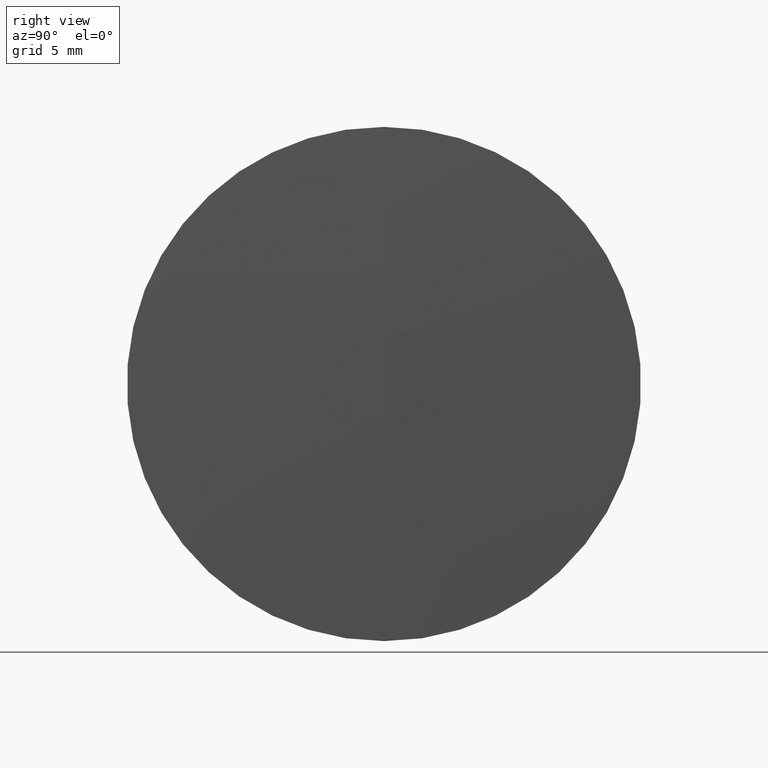
[diagram: clean part render]
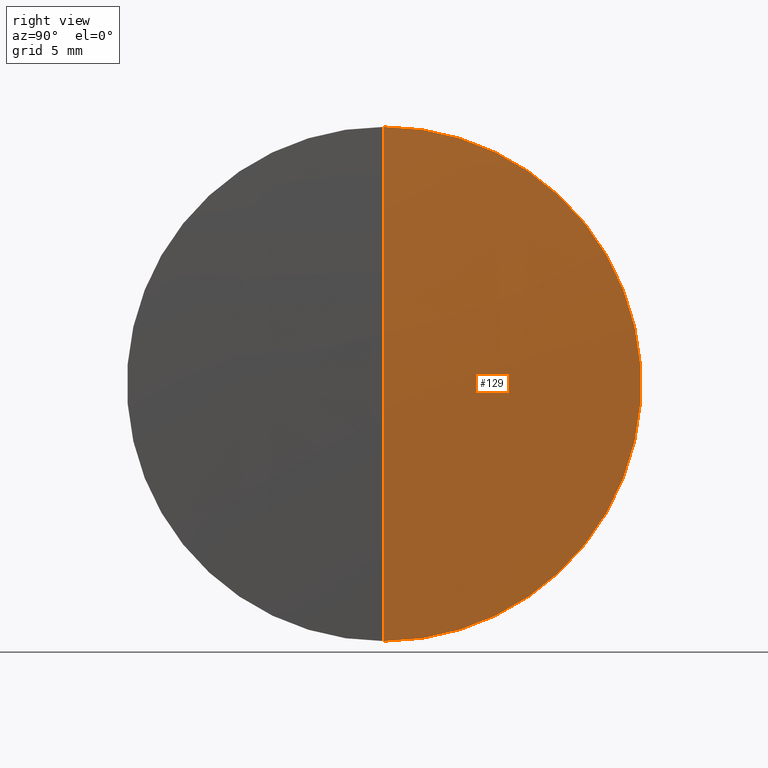
[diagram: same view with one face highlighted and labeled with its STEP entity id]
A machine part, right view. The second image highlights one B-rep face of the part: STEP entity #129.
In plain terms, the highlighted spherical surface has radius 333.209 mm.
Its self-contained STEP definition (entity closure, byte-faithful):
#8 = EDGE_CURVE ( 'NONE', #28, #264, #342, .T. ) ;
#15 = DIRECTION ( 'NONE',  ( 0.0000000000000000000, -1.224646799147353000E-016, 1.000000000000000000 ) ) ;
#18 = DIRECTION ( 'NONE',  ( 0.0000000000000000000, 0.0000000000000000000, -1.000000000000000000 ) ) ;
#19 = DIRECTION ( 'NONE',  ( -0.0000000000000000000, 1.000000000000000000, 1.224646799147353200E-016 ) ) ;
#20 = CARTESIAN_POINT ( 'NONE',  ( 117.4941239712516400, 0.0000000000000000000, 0.0000000000000000000 ) ) ;
#23 = AXIS2_PLACEMENT_3D ( 'NONE', #20, #296, #322 ) ;
#28 = VERTEX_POINT ( 'NONE', #172 ) ;
#38 = VERTEX_POINT ( 'NONE', #155 ) ;
#52 = EDGE_CURVE ( 'NONE', #38, #264, #102, .T. ) ;
#85 = EDGE_CURVE ( 'NONE', #28, #38, #325, .T. ) ;
#94 = DIRECTION ( 'NONE',  ( 0.0000000000000000000, 1.000000000000000000, 0.0000000000000000000 ) ) ;
#102 = CIRCLE ( 'NONE', #23, 12.49999999999995000 ) ;
#115 = ORIENTED_EDGE ( 'NONE', *, *, #8, .T. ) ;
#122 = FACE_OUTER_BOUND ( 'NONE', #182, .T. ) ;
#129 = ADVANCED_FACE ( 'NONE', ( #122 ), #187, .T. ) ;
#139 = CARTESIAN_POINT ( 'NONE',  ( -215.4803310264252900, 0.0000000000000000000, 0.0000000000000000000 ) ) ;
#144 = CARTESIAN_POINT ( 'NONE',  ( -215.4803310264252900, 0.0000000000000000000, 0.0000000000000000000 ) ) ;
#148 = CARTESIAN_POINT ( 'NONE',  ( -215.4803310264252900, 0.0000000000000000000, 0.0000000000000000000 ) ) ;
#151 = DIRECTION ( 'NONE',  ( 0.0000000000000000000, -1.000000000000000000, 0.0000000000000000000 ) ) ;
#155 = CARTESIAN_POINT ( 'NONE',  ( 117.4941239712516400, 0.0000000000000000000, 12.49999999999995000 ) ) ;
#172 = CARTESIAN_POINT ( 'NONE',  ( 117.7286689735747000, 0.0000000000000000000, 2.040316676485451900E-014 ) ) ;
#182 = EDGE_LOOP ( 'NONE', ( #254, #115, #271 ) ) ;
#185 = CARTESIAN_POINT ( 'NONE',  ( 117.4941239712516400, 1.530808498934186400E-015, -12.49999999999995000 ) ) ;
#187 = SPHERICAL_SURFACE ( 'NONE', #288, 333.2090000000000000 ) ;
#240 = DIRECTION ( 'NONE',  ( 0.0000000000000000000, 0.0000000000000000000, 1.000000000000000000 ) ) ;
#254 = ORIENTED_EDGE ( 'NONE', *, *, #85, .F. ) ;
#258 = AXIS2_PLACEMENT_3D ( 'NONE', #139, #151, #18 ) ;
#264 = VERTEX_POINT ( 'NONE', #185 ) ;
#271 = ORIENTED_EDGE ( 'NONE', *, *, #52, .F. ) ;
#288 = AXIS2_PLACEMENT_3D ( 'NONE', #148, #94, #240 ) ;
#296 = DIRECTION ( 'NONE',  ( -1.000000000000000000, -0.0000000000000000000, -0.0000000000000000000 ) ) ;
#316 = AXIS2_PLACEMENT_3D ( 'NONE', #144, #19, #15 ) ;
#322 = DIRECTION ( 'NONE',  ( 0.0000000000000000000, 0.0000000000000000000, 1.000000000000000000 ) ) ;
#325 = CIRCLE ( 'NONE', #258, 333.2090000000000000 ) ;
#342 = CIRCLE ( 'NONE', #316, 333.2090000000000000 ) ;